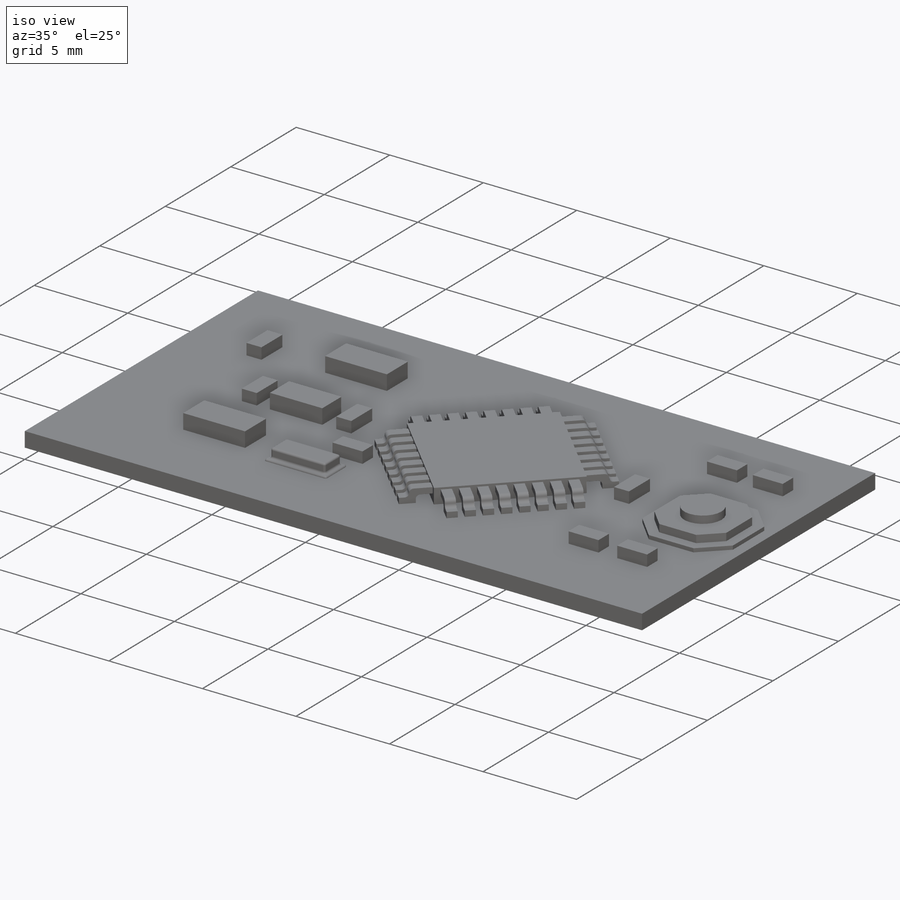
[diagram: iso view]
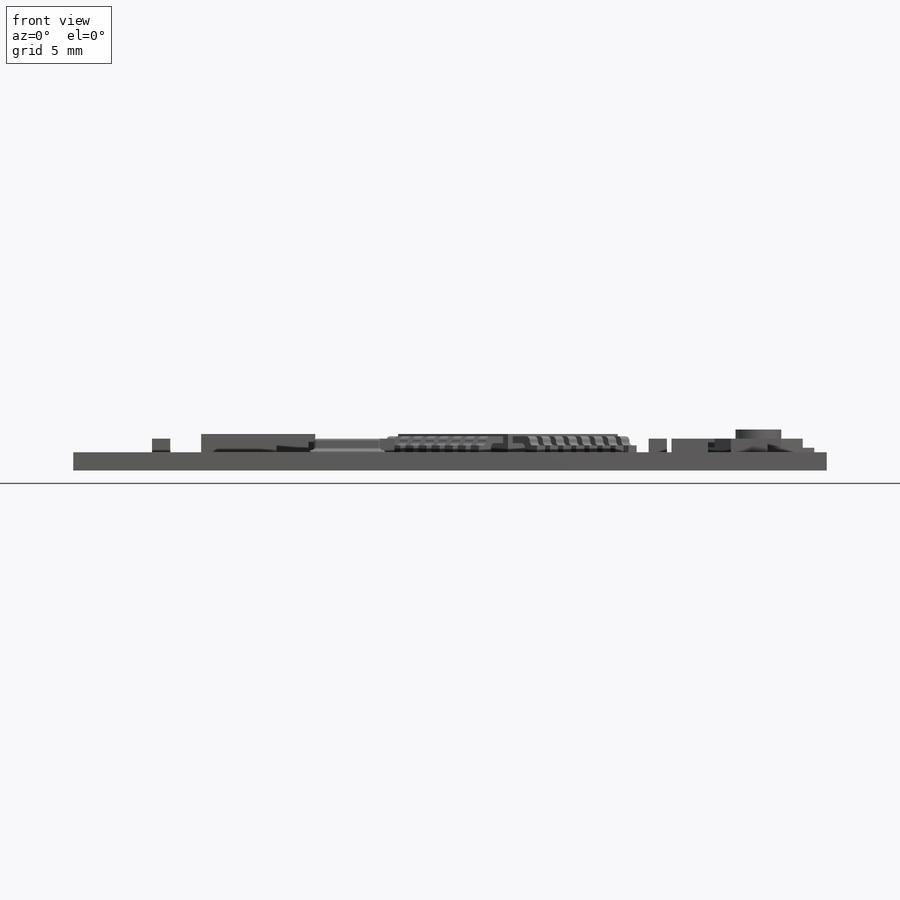
[diagram: front view]
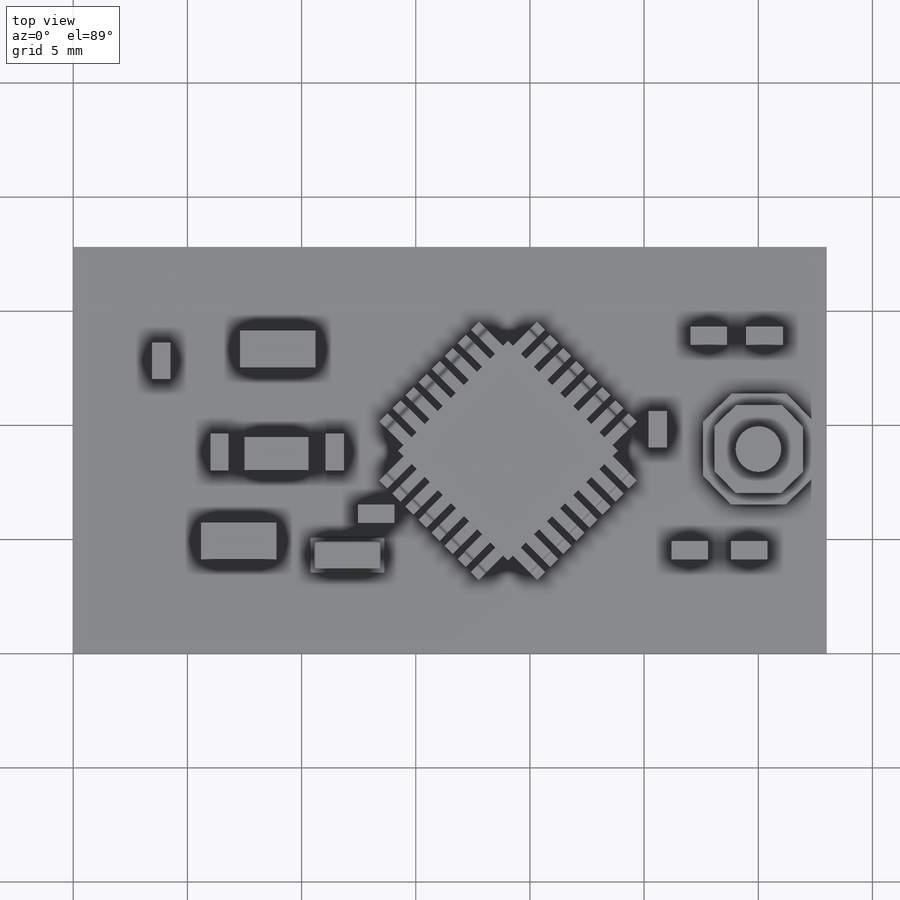
[diagram: top view]
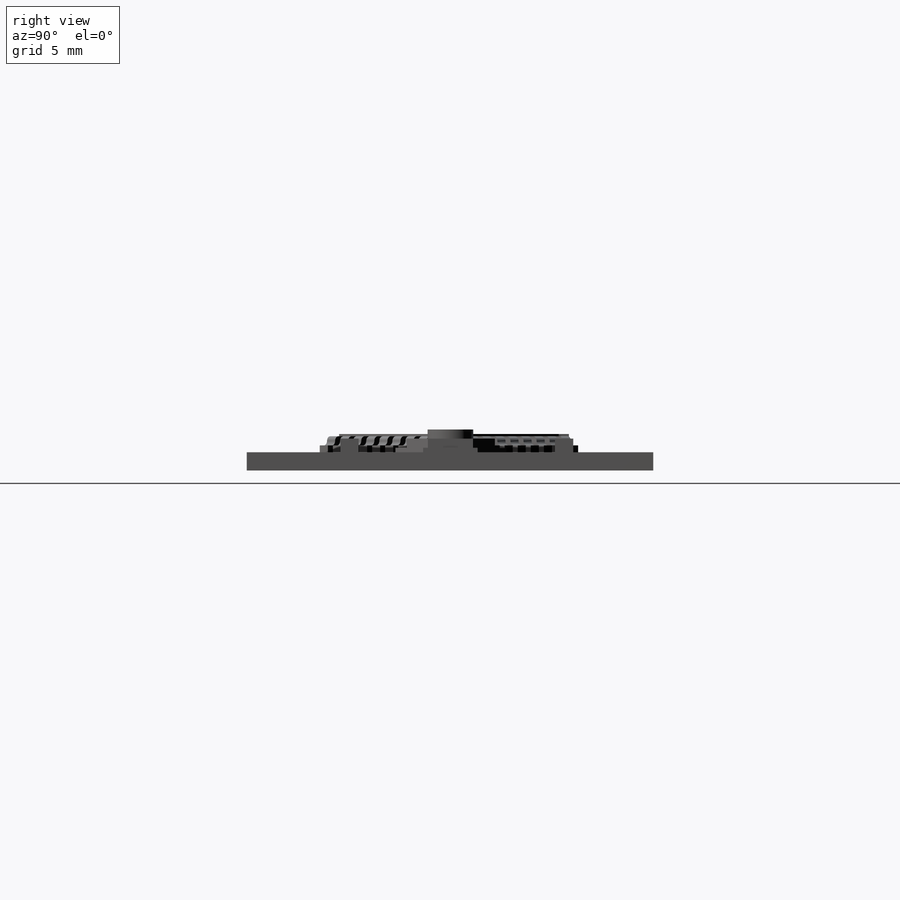
[diagram: right view]
SOLIDWORKS PART (.sldprt)
format: sldprt  version: not decoded by parser v0  size: 2,622,464 bytes
history: native  units: mm
features: sketch x14, extrude x12, plane x6, fillet x2, mirror x2, material x1, pattern_linear x1 (+13 scaffold rows collapsed; 3 parser-record rows omitted)
feature tree (54):
  scaffold x13  (default folders/planes/origin — collapsed)
  material  "Material <not specified>"
  plane  "Ön Düzlem"
  plane  "Üst Düzlem"
  plane  "Sağ Düzlem"
  sketch  "Board_dimensions"  dims[D1=33.0mm D2=17.8mm]
  extrude  "Board"  Depth=0.8mm
  sketch  "Back Print"
  sketch  "Components1"  dims[D1=1.6mm D2=1.6mm D3=3.3mm D4=3.3mm D5=~4.104487mm D6=5.6mm D7=7.3mm D8=6.8mm D9=2.8mm D10=1.45mm D11=2.3mm D12=7.5mm]
  extrude  "Large Components"  Depth=0.8mm
  sketch  "Sketch7"  dims[c1.D1=1.6mm c1.D2=0.8mm c1.D3=6.0mm c1.D4=8.0mm c1.D5=0.8mm c1.D6=4.25mm c1.D7=1.6mm c1.D8=0.8mm c1.D9=1.6mm c1.D10=1.6mm c1.D11=~0.795648mm c1.D12=2.65mm c1.D13=4.35mm c1.D14=1.6mm c1.D15=0.8mm c1.D16=0.8mm c1.D17=1.6mm c1.D18=1.6mm c1.D19=0.8mm c1.D20=1.6mm c1.D21=0.8mm c1.D22=3.7mm c1.D23=3.7mm c1.D24=3.5mm c1.D25=0.6mm c1.D26=1.5mm c1.D27=3.5mm c1.D28=0.85mm c1.D29=0.8mm c1.D30=1.6mm c1.D31=2.6mm c1.D32=4.1mm c2.D10=6.5mm c2.D11=1.6mm c2.D12=0.8mm c2.D13=0.0mm c2.D33=1.0mm c2.D34=0.8mm c2.D35=1.6mm c2.D36=7.0mm c2.D37=~1.760086mm c2.D14=9.0mm c2.D15=1.6mm c2.D16=0.8mm c2.D17=4.2mm c2.D22=3.45mm]
  extrude  "Small Components"  Depth=0.6mm
  parser-record x3  (decoder bookkeeping rows leaked as tree rows — omitted from the tree; the rows remain in map.json)
  sketch  "Sketch8"  dims[D1=3.3mm D2=1.6mm D3=3.5mm D4=1.45mm]
  extrude  "Crystal_bottom"  Depth=0.1mm
  sketch  "Sketch9"  dims[D1=0.2mm D2=0.2mm D3=0.2mm D4=0.2mm D5=3.3mm]
  extrude  "Crystal_top"  Depth=0.5mm
  fillet  "Fillet"  Radius=0.1mm
  sketch  "Sketch10"  dims[c1.D1=6.8mm c1.D2=6.8mm c1.D3=4.6061mm c2.D3=45.0deg c2.D4=~4.982588mm c3.D4=90.0deg c4.D4=6.8mm c4.D5=6.8mm]
  extrude  "Atmel"  Depth=0.8mm
  sketch  "Atmel logo"
  extrude  "Sketch Picture11"  [1 undecoded]
  plane  "Plane1"  Offset=0.3mm
  plane  "Plane3"
  plane  "Plane2"
  sketch  "Sketch13"  dims[c1.D1=0.3mm c1.D3=0.3mm c1.D5=0.3mm c2.D1=0.3mm c2.D2=0.4mm c2.D3=0.3mm c2.D4=0.3mm c2.D5=0.75mm c2.D6=1.5mm c2.D7=0.75mm c3.D1=0.3mm c3.D3=0.5mm]
  extrude  "Boss-Extrude8"  Depth=0.5mm
  fillet  "Fillet7"  Radius=0.2mm
  pattern_linear  "LPattern4"  Count1=8 Count2=1 Spacing1=0.81mm Spacing2=50mm
  mirror  "Mirror8"
  mirror  "Mirror9"
  sketch  "Sketch20"  dims[c1.D1=4.5mm c1.D2=5.0mm c1.D3=0.55mm c1.D4=6.5mm c1.D5=1.75mm c1.D6=1.75mm c1.D7=1.75mm c1.D8=1.75mm c2.D1=~2.389711mm c2.D2=~2.389711mm c2.D9=~2.389711mm c2.D10=~2.389711mm c2.D11=0.5mm]
  extrude  "Boss-Extrude9"  Depth=0.2mm
  sketch  "Sketch22"  dims[D1=0.5mm]
  extrude  "Boss-Extrude10"  Depth=0.4mm
  sketch  "Sketch24"  dims[D3=2.0mm D1=~1.944563mm D2=~1.91981mm]
  extrude  "Boss-Extrude11"  Depth=0.4mm
  sketch  "Front Print"
  extrude  "Sketch Picture16"  Depth=30.832432mm
  sketch  "Pin Hole"  dims[D1=~0.687189mm D2=15.0mm D3=15.0mm]
decode coverage: 25 of 31 modeling features carry decoded parameters
note: ~ marks probable driven/reference dimensions
note: 1 parameter value undecoded
note: suppression state not decoded; provenance and decode notes live in map.json
